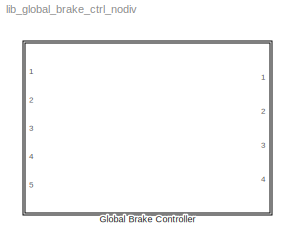
MODEL lib_global_brake_ctrl_nodiv
KIND library
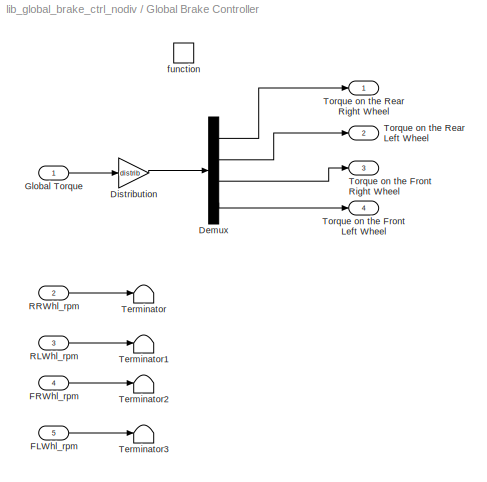
BLOCK [SubSystem] Global Brake Controller
  FunctionWithSeparateData = off
  MaskHideContents = off
  MinAlgLoopOccurrences = off
  Opaque = off
  Ports = [5, 4, 0, 1]
  PropExecContextOutsideSubsystem = off
  RTWSystemCode = Auto
  RequestExecContextInheritance = off
  SID = 1
  TreatAsAtomicUnit = on
BLOCK [Demux] Global Brake Controller/Demux
  DisplayOption = bar
  Ports = [1, 4]
  SID = 9
BLOCK [Gain] Global Brake Controller/Distribution
  Gain = distrib
  OutDataTypeStr = double
  OutMax = 2000
  ParamDataTypeStr = Inherit: Inherit via internal rule
  SID = 10
  SaturateOnIntegerOverflow = off
BLOCK [Inport] Global Brake Controller/FLWhl_rpm
  IconDisplay = Port number
  Port = 5
  SID = 6
BLOCK [Inport] Global Brake Controller/FRWhl_rpm
  IconDisplay = Port number
  Port = 4
  SID = 5
BLOCK [Inport] Global Brake Controller/Global Torque
  IconDisplay = Port number
  SID = 2
BLOCK [Inport] Global Brake Controller/RLWhl_rpm
  IconDisplay = Port number
  Port = 3
  SID = 4
BLOCK [Inport] Global Brake Controller/RRWhl_rpm
  IconDisplay = Port number
  Port = 2
  SID = 3
BLOCK [Terminator] Global Brake Controller/Terminator
  SID = 19
BLOCK [Terminator] Global Brake Controller/Terminator1
  SID = 20
BLOCK [Terminator] Global Brake Controller/Terminator2
  SID = 21
BLOCK [Terminator] Global Brake Controller/Terminator3
  SID = 22
BLOCK [Outport] Global Brake Controller/Torque on the Front Left Wheel
  IconDisplay = Port number
  Port = 4
  SID = 17
BLOCK [Outport] Global Brake Controller/Torque on the Front Right Wheel
  IconDisplay = Port number
  Port = 3
  SID = 16
BLOCK [Outport] Global Brake Controller/Torque on the Rear Left Wheel
  IconDisplay = Port number
  Port = 2
  SID = 15
BLOCK [Outport] Global Brake Controller/Torque on the Rear Right Wheel
  IconDisplay = Port number
  SID = 14
BLOCK [TriggerPort] Global Brake Controller/function
  Ports = []
  SID = 7
  StatesWhenEnabling = held
  TriggerType = function-call
LINE Global Brake Controller/Demux:1 -> Global Brake Controller/Torque on the Rear Right Wheel:1
LINE Global Brake Controller/Demux:2 -> Global Brake Controller/Torque on the Rear Left Wheel:1
LINE Global Brake Controller/Demux:3 -> Global Brake Controller/Torque on the Front Right Wheel:1
LINE Global Brake Controller/Demux:4 -> Global Brake Controller/Torque on the Front Left Wheel:1
LINE Global Brake Controller/Distribution:1 -> Global Brake Controller/Demux:1
LINE Global Brake Controller/FLWhl_rpm:1 -> Global Brake Controller/Terminator3:1
LINE Global Brake Controller/FRWhl_rpm:1 -> Global Brake Controller/Terminator2:1
LINE Global Brake Controller/Global Torque:1 -> Global Brake Controller/Distribution:1
LINE Global Brake Controller/RLWhl_rpm:1 -> Global Brake Controller/Terminator1:1
LINE Global Brake Controller/RRWhl_rpm:1 -> Global Brake Controller/Terminator:1
